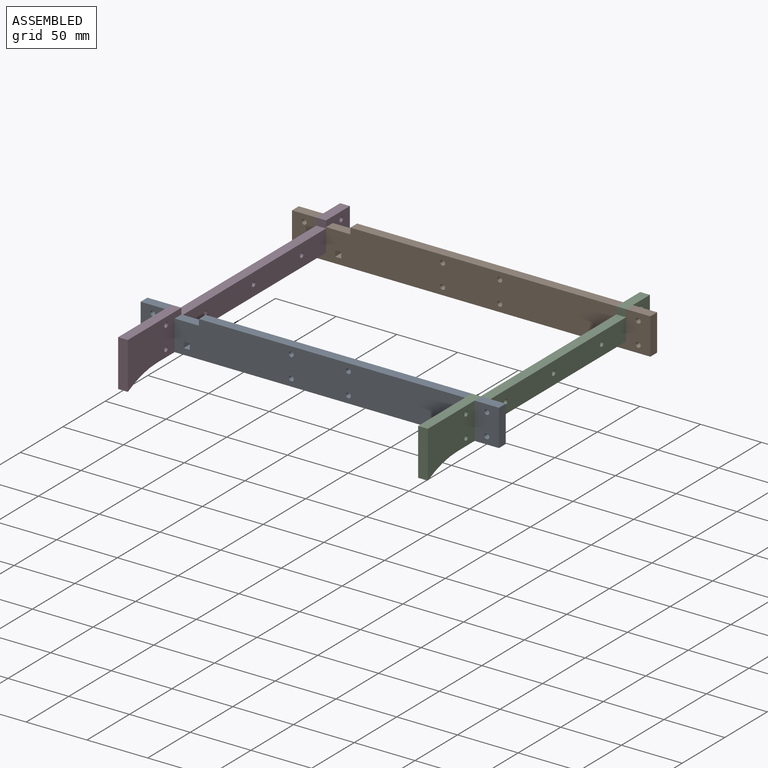
[diagram: assembled view]
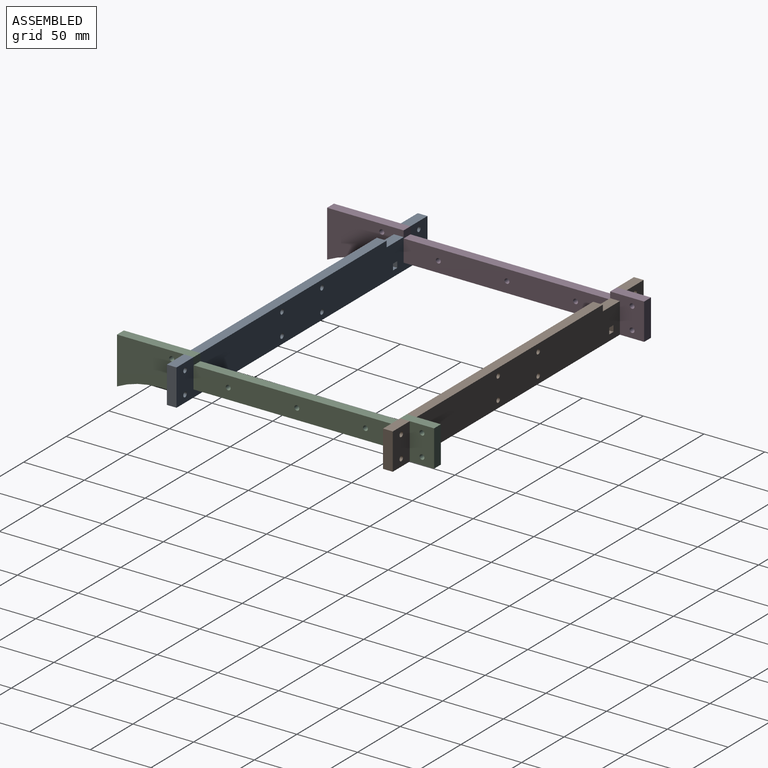
[diagram: assembled view, second angle]
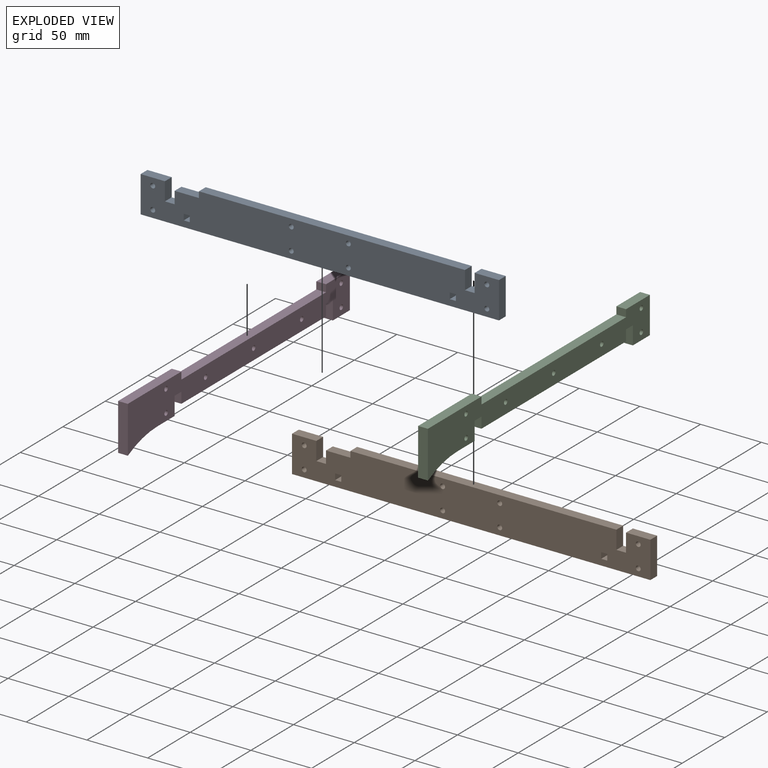
[diagram: exploded view]
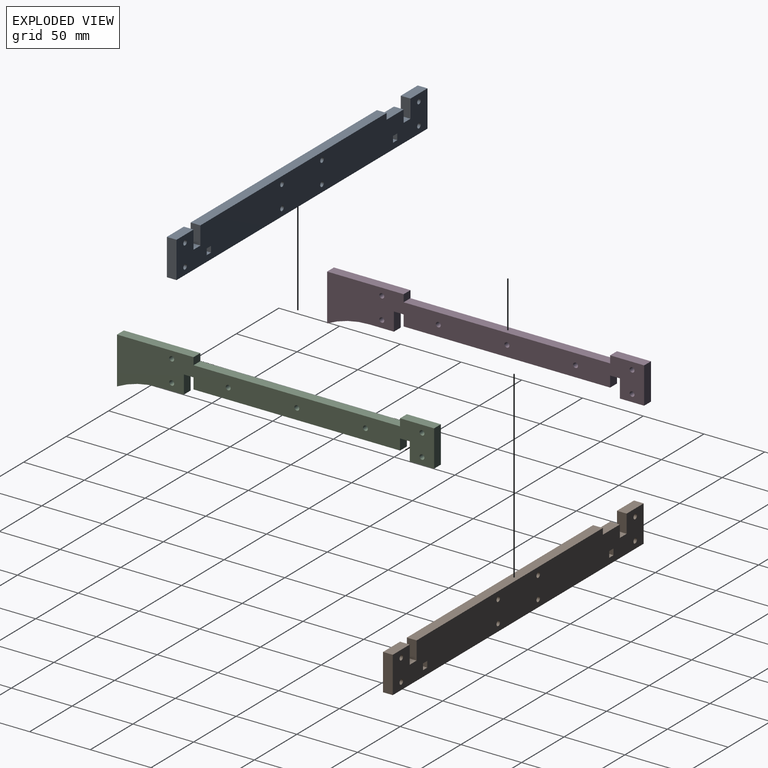
[diagram: exploded view, second angle]
ASSEMBLY  parts=4 mates=3
PART A: 32 faces, bbox 295x8x30 mm
  f0: plane 295x8mm, normal (0,0,1), area 2360mm2, adj f1,f21,f22,f23
  f1: plane 30x8mm, normal (-1,0,0), area 240mm2, adj f0,f2,f22,f23
  f2: plane 20x8mm, normal (0,0,-1), area 160mm2, adj f1,f3,f22,f23
  f3: plane 15x8mm, normal (1,0,0), area 120mm2, adj f2,f4,f22,f23
  f4: plane 8x8mm, normal (0,0,-1), area 64mm2, adj f3,f5,f22,f23
  f5: plane 10x8mm, normal (-1,0,0), area 80mm2, adj f4,f6,f22,f23
  f6: plane 20x8mm, normal (0,0,-1), area 160mm2, adj f5,f7,f22,f23
  f7: plane 8x5mm, normal (-1,0,0), area 40mm2, adj f6,f8,f22,f23
  f8: plane 219x8mm, normal (0,0,-1), area 1752mm2, adj f7,f9,f22,f23
  f9: plane 15x8mm, normal (1,0,0), area 120mm2, adj f8,f10,f22,f23
  f10: plane 8x8mm, normal (0,0,-1), area 64mm2, adj f9,f11,f22,f23
  f11: plane 15x8mm, normal (-1,0,0), area 120mm2, adj f10,f12,f22,f23
  f12: plane 20x8mm, normal (0,0,-1), area 160mm2, adj f11,f21,f22,f23
  f13: plane 8x5mm, normal (1,0,0), area 40mm2, adj f14,f19,f22,f23
  f14: plane 8x5mm, normal (0,0,-1), area 40mm2, adj f13,f15,f22,f23
  f15: plane 8x5mm, normal (-1,0,0), area 40mm2, adj f14,f19,f22,f23
  f16: plane 8x5mm, normal (0,0,-1), area 40mm2, adj f17,f20,f22,f23
  f17: plane 8x5mm, normal (-1,0,0), area 40mm2, adj f16,f18,f22,f23
  f18: plane 8x5mm, normal (0,0,1), area 40mm2, adj f17,f20,f22,f23
  f19: plane 8x5mm, normal (0,0,1), area 40mm2, adj f13,f15,f22,f23
  f20: plane 8x5mm, normal (1,0,0), area 40mm2, adj f16,f18,f22,f23
  f21: plane 30x8mm, normal (1,0,0), area 240mm2, adj f0,f12,f22,f23
  f22: plane 295x30mm, normal (0,-1,0), area 8359.5mm2, adj f0,f1,f2,f3,f4,f5,f6,f7
  f23: plane 295x30mm, normal (0,1,0), area 8359.5mm2, adj f0,f1,f2,f3,f4,f5,f6,f7
  f24: cylinder r=2mm len=8mm, axis (0,1,0), area 100.5mm2, adj f22,f23
  f25: cylinder r=2mm len=8mm, axis (0,1,0), area 100.5mm2, adj f22,f23
  f26: cylinder r=2mm len=8mm, axis (0,1,0), area 100.5mm2, adj f22,f23
  f27: cylinder r=2mm len=8mm, axis (0,1,0), area 100.5mm2, adj f22,f23
  f28: cylinder r=2mm len=8mm, axis (0,1,0), area 100.5mm2, adj f22,f23
  f29: cylinder r=2mm len=8mm, axis (0,1,0), area 100.5mm2, adj f22,f23
  f30: cylinder r=2mm len=8mm, axis (0,1,0), area 100.5mm2, adj f22,f23
  f31: cylinder r=2mm len=8mm, axis (0,1,0), area 100.5mm2, adj f22,f23
PART B: same geometry as A
PART C: 26 faces, bbox 261x8x38.6 mm
  f0: cylinder r=75.61mm len=35mm, axis (0,1,0), area 291.1mm2, adj f1,f16,f17,f18
  f1: plane 38.59x8mm, normal (1,0,0), area 308.7mm2, adj f0,f2,f17,f18
  f2: plane 63x8mm, normal (0,0,1), area 504mm2, adj f1,f3,f17,f18
  f3: plane 8x6mm, normal (-1,0,0), area 48mm2, adj f2,f4,f17,f18
  f4: plane 170x8mm, normal (0,0,1), area 1360mm2, adj f3,f5,f17,f18
  f5: plane 8x6mm, normal (1,0,0), area 48mm2, adj f4,f6,f17,f18
  f6: plane 28x8mm, normal (0,0,1), area 224mm2, adj f5,f7,f17,f18
  f7: plane 30x8mm, normal (-1,0,0), area 240mm2, adj f6,f8,f17,f18
  f8: plane 20x8mm, normal (0,0,-1), area 160mm2, adj f7,f9,f17,f18
  f9: plane 15x8mm, normal (1,0,0), area 120mm2, adj f8,f10,f17,f18
  f10: plane 8x8mm, normal (0,0,-1), area 64mm2, adj f9,f11,f17,f18
  f11: plane 9x8mm, normal (-1,0,0), area 72mm2, adj f10,f12,f17,f18
  f12: plane 170x8mm, normal (0,0,-1), area 1360mm2, adj f11,f13,f17,f18
  f13: plane 9x8mm, normal (1,0,0), area 72mm2, adj f12,f14,f17,f18
  f14: plane 8x8mm, normal (0,0,-1), area 64mm2, adj f13,f15,f17,f18
  f15: plane 15x8mm, normal (-1,0,0), area 120mm2, adj f14,f16,f17,f18
  f16: plane 20x8mm, normal (0,0,-1), area 160mm2, adj f0,f15,f17,f18
  f17: plane 261x38.59mm, normal (0,-1,0), area 5559.8mm2, adj f0,f1,f2,f3,f4,f5,f6,f7
  f18: plane 261x38.59mm, normal (0,1,0), area 5559.8mm2, adj f0,f1,f2,f3,f4,f5,f6,f7
  f19: cylinder r=2mm len=8mm, axis (0,1,0), area 100.5mm2, adj f17,f18
  f20: cylinder r=2mm len=8mm, axis (0,1,0), area 100.5mm2, adj f17,f18
  f21: cylinder r=2mm len=8mm, axis (0,1,0), area 100.5mm2, adj f17,f18
  f22: cylinder r=2mm len=8mm, axis (0,1,0), area 100.5mm2, adj f17,f18
  f23: cylinder r=2mm len=8mm, axis (0,1,0), area 100.5mm2, adj f17,f18
  f24: cylinder r=2mm len=8mm, axis (0,1,0), area 100.5mm2, adj f17,f18
  f25: cylinder r=2mm len=8mm, axis (0,1,0), area 100.5mm2, adj f17,f18
PART D: same geometry as C
PLACE A rot(axis=(1,0,0),180deg) t=(-29.6,-161.5,175.28)mm
PLACE B rot(axis=(-1,0,0),180deg) t=(-29.6,16.5,175.28)mm
PLACE C rot(axis=(0,0,-1),90deg) t=(202.19,1.29,68.21)mm
PLACE D rot(axis=(0,0,-1),90deg) t=(-44.81,1.29,68.21)mm
MATE fastened D.f14 <-> A.f4  axis (0,0,-1) through (-48.81,-157.5,100.74)mm
MATE fastened C.f14 <-> A.f10  axis (0,0,-1) through (198.19,-157.5,100.74)mm
MATE fastened C.f10 <-> B.f10  axis (0,0,-1) through (198.19,20.5,100.74)mm
